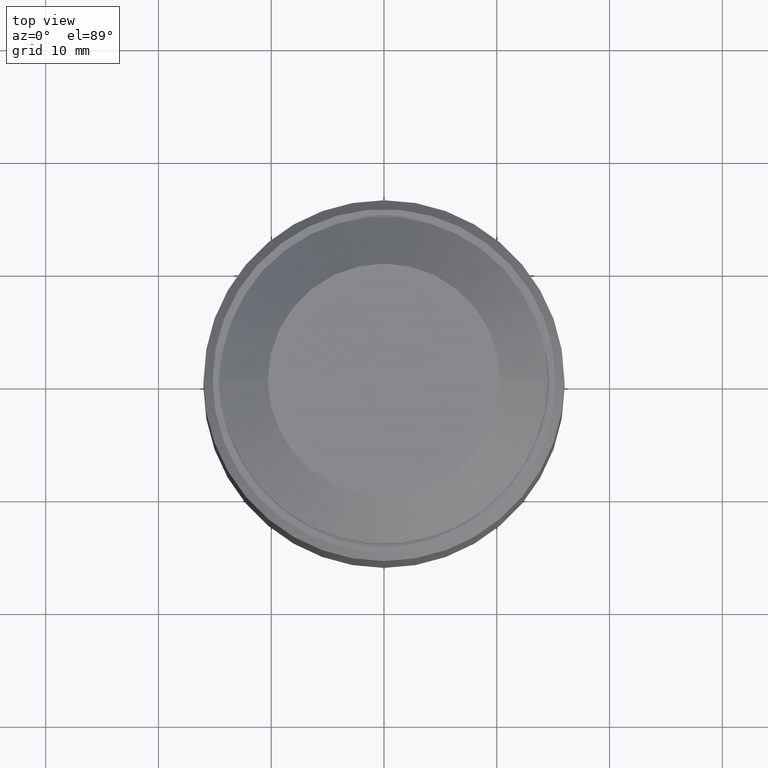
[diagram: clean part render]
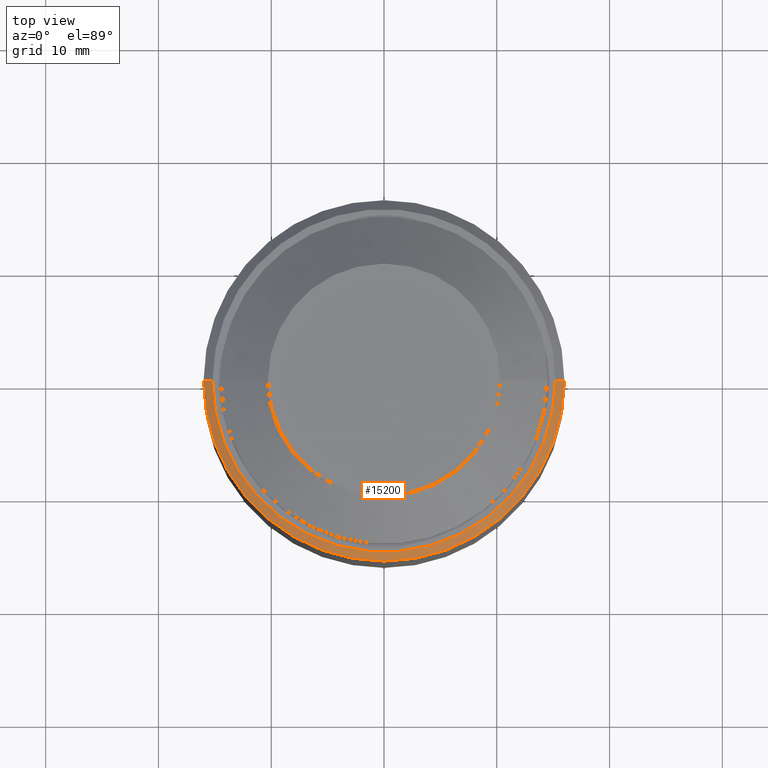
[diagram: same view with one face highlighted and labeled with its STEP entity id]
A machine part, top view. The second image highlights one B-rep face of the part: STEP entity #15200.
In plain terms, the highlighted conical surface has half-angle 45 deg.
Its self-contained STEP definition (entity closure, byte-faithful):
#168 = EDGE_CURVE ( 'NONE', #23279, #8726, #8263, .T. ) ;
#213 = CONICAL_SURFACE ( 'NONE', #14701, 15.19999999999999929, 0.7853981633974476129 ) ;
#867 = ORIENTED_EDGE ( 'NONE', *, *, #19697, .F. ) ;
#1432 = DIRECTION ( 'NONE',  ( 0.000000000000000000, 0.000000000000000000, -1.000000000000000000 ) ) ;
#1768 = ORIENTED_EDGE ( 'NONE', *, *, #22963, .T. ) ;
#1807 = CARTESIAN_POINT ( 'NONE',  ( 0.000000000000000000, 0.000000000000000000, 42.39999999999999858 ) ) ;
#2240 = ORIENTED_EDGE ( 'NONE', *, *, #22954, .F. ) ;
#2580 = CARTESIAN_POINT ( 'NONE',  ( -15.19999999999999929, 0.000000000000000000, 42.39999999999999858 ) ) ;
#3106 = VECTOR ( 'NONE', #24078, 1000.000000000000000 ) ;
#4786 = DIRECTION ( 'NONE',  ( 0.7071067811865470176, 8.659560562354926695E-17, -0.7071067811865480168 ) ) ;
#7482 = CARTESIAN_POINT ( 'NONE',  ( -15.19999999999999929, 0.000000000000000000, 42.39999999999999858 ) ) ;
#7630 = CARTESIAN_POINT ( 'NONE',  ( 0.000000000000000000, 0.000000000000000000, 42.39999999999999858 ) ) ;
#7744 = CARTESIAN_POINT ( 'NONE',  ( -16.00000000000000000, 0.000000000000000000, 41.60000000000000142 ) ) ;
#8263 = CIRCLE ( 'NONE', #12817, 15.19999999999999929 ) ;
#8279 = CARTESIAN_POINT ( 'NONE',  ( 15.19999999999999929, 1.861463134703977092E-15, 42.39999999999999858 ) ) ;
#8726 = VERTEX_POINT ( 'NONE', #12846 ) ;
#8944 = EDGE_LOOP ( 'NONE', ( #2240, #10218, #1768, #867 ) ) ;
#10218 = ORIENTED_EDGE ( 'NONE', *, *, #168, .F. ) ;
#12817 = AXIS2_PLACEMENT_3D ( 'NONE', #7630, #15542, #20319 ) ;
#12846 = CARTESIAN_POINT ( 'NONE',  ( 15.19999999999999929, 1.910449006669870914E-15, 42.39999999999999858 ) ) ;
#14701 = AXIS2_PLACEMENT_3D ( 'NONE', #1807, #17356, #25373 ) ;
#15200 = ADVANCED_FACE ( 'NONE', ( #23566 ), #213, .T. ) ;
#15542 = DIRECTION ( 'NONE',  ( 0.000000000000000000, 0.000000000000000000, 1.000000000000000000 ) ) ;
#15578 = AXIS2_PLACEMENT_3D ( 'NONE', #15696, #1432, #20221 ) ;
#15696 = CARTESIAN_POINT ( 'NONE',  ( 0.000000000000000000, 0.000000000000000000, 41.60000000000000142 ) ) ;
#16457 = LINE ( 'NONE', #8279, #18837 ) ;
#17356 = DIRECTION ( 'NONE',  ( 0.000000000000000000, 0.000000000000000000, -1.000000000000000000 ) ) ;
#18528 = LINE ( 'NONE', #2580, #3106 ) ;
#18837 = VECTOR ( 'NONE', #4786, 1000.000000000000000 ) ;
#19697 = EDGE_CURVE ( 'NONE', #23254, #23329, #21773, .T. ) ;
#19790 = CARTESIAN_POINT ( 'NONE',  ( 16.00000000000000000, 1.959434878635765526E-15, 41.60000000000000142 ) ) ;
#20221 = DIRECTION ( 'NONE',  ( 1.000000000000000000, 0.000000000000000000, 0.000000000000000000 ) ) ;
#20319 = DIRECTION ( 'NONE',  ( 1.000000000000000000, 0.000000000000000000, 0.000000000000000000 ) ) ;
#21773 = CIRCLE ( 'NONE', #15578, 16.00000000000000000 ) ;
#22954 = EDGE_CURVE ( 'NONE', #8726, #23254, #16457, .T. ) ;
#22963 = EDGE_CURVE ( 'NONE', #23279, #23329, #18528, .T. ) ;
#23254 = VERTEX_POINT ( 'NONE', #19790 ) ;
#23279 = VERTEX_POINT ( 'NONE', #7482 ) ;
#23329 = VERTEX_POINT ( 'NONE', #7744 ) ;
#23566 = FACE_OUTER_BOUND ( 'NONE', #8944, .T. ) ;
#24078 = DIRECTION ( 'NONE',  ( -0.7071067811865470176, 0.000000000000000000, -0.7071067811865480168 ) ) ;
#25373 = DIRECTION ( 'NONE',  ( -1.000000000000000000, 0.000000000000000000, 0.000000000000000000 ) ) ;